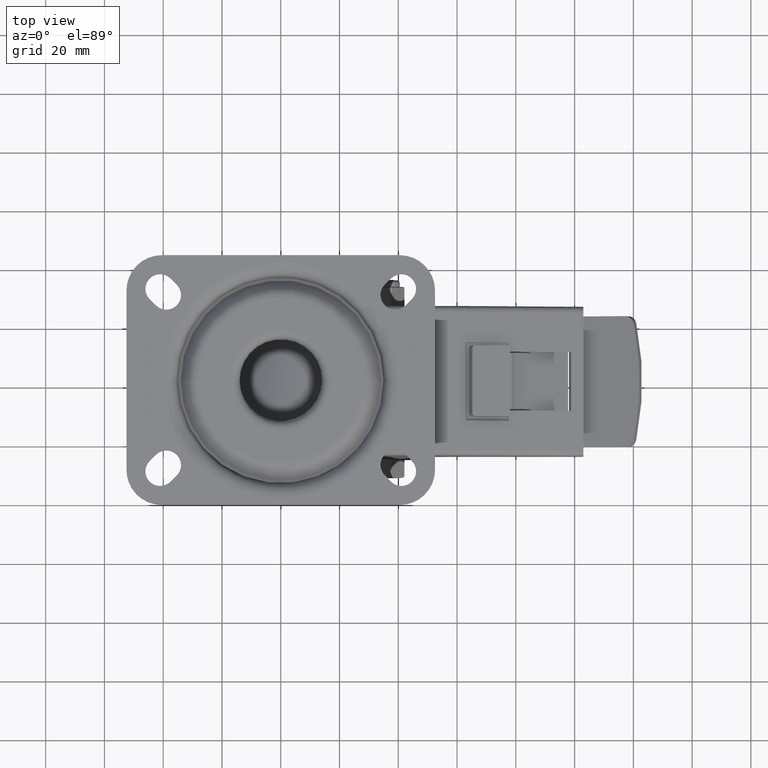
[diagram: clean part render]
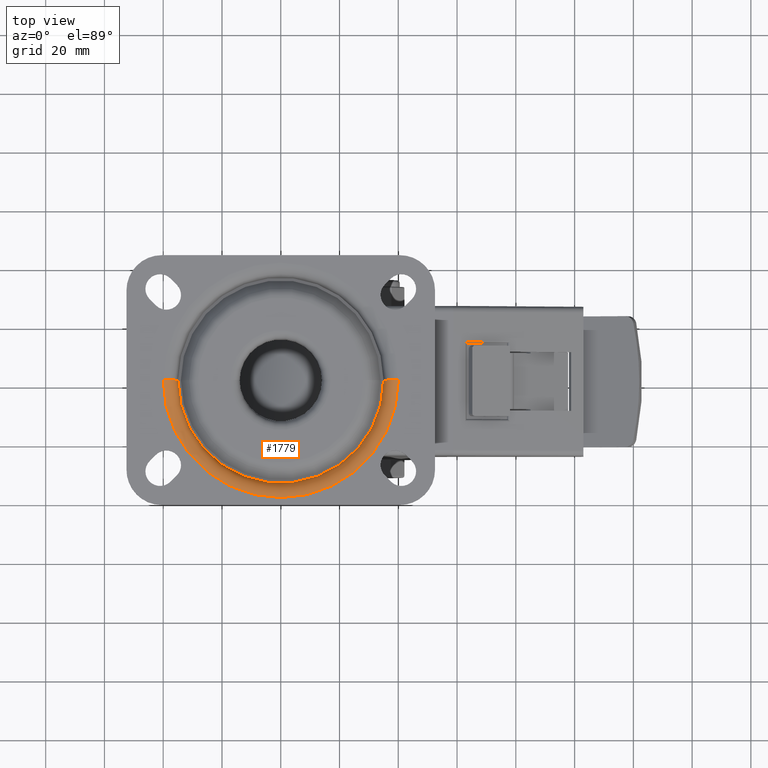
[diagram: same view with one face highlighted and labeled with its STEP entity id]
A machine part, top view. The second image highlights one B-rep face of the part: STEP entity #1779.
In plain terms, the highlighted toroidal blend (fillet) surface has major radius 40 mm and minor (blend) radius 5 mm.
Its self-contained STEP definition (entity closure, byte-faithful):
#1779=ADVANCED_FACE('77:25693',(#3422),#3423,.T.);
#3422=FACE_OUTER_BOUND('',#6004,.T.);
#3423=TOROIDAL_SURFACE('',#6005,0.04,0.005);
#6004=EDGE_LOOP('',(#15702,#15703,#15704,#15705));
#6005=AXIS2_PLACEMENT_3D('',#15706,#15707,#15708);
#15702=ORIENTED_EDGE('',*,*,#25019,.T.);
#15703=ORIENTED_EDGE('',*,*,#25570,.T.);
#15704=ORIENTED_EDGE('',*,*,#25021,.T.);
#15705=ORIENTED_EDGE('',*,*,#25571,.T.);
#15706=CARTESIAN_POINT('',(1.63670789225912E-19,0.0,-0.0025));
#15707=DIRECTION('',(-0.0,0.0,-1.0));
#15708=DIRECTION('',(-1.0,0.0,0.0));
#25019=EDGE_CURVE('',#28312,#28313,#28314,.T.);
#25021=EDGE_CURVE('',#28317,#28315,#28318,.T.);
#25570=EDGE_CURVE('77:27043',#28313,#28317,#29227,.T.);
#25571=EDGE_CURVE('77:27040',#28315,#28312,#29228,.T.);
#28312=VERTEX_POINT('',#33651);
#28313=VERTEX_POINT('',#33652);
#28314=CIRCLE('',#33653,0.005);
#28315=VERTEX_POINT('',#33654);
#28317=VERTEX_POINT('',#33656);
#28318=CIRCLE('',#33657,0.005);
#29227=CIRCLE('',#34944,0.04);
#29228=CIRCLE('',#34945,0.035);
#33651=CARTESIAN_POINT('',(-0.035,0.0,-0.00249999999999993));
#33652=CARTESIAN_POINT('',(-0.04,-9.79717439317882E-18,0.0025));
#33653=AXIS2_PLACEMENT_3D('',#45431,#45432,#45433);
#33654=CARTESIAN_POINT('',(0.035,4.28626379701574E-18,-0.00249999999999993));
#33656=CARTESIAN_POINT('',(0.04,4.89858719658941E-18,0.0025));
#33657=AXIS2_PLACEMENT_3D('',#45437,#45438,#45439);
#34944=AXIS2_PLACEMENT_3D('',#46328,#46329,#46330);
#34945=AXIS2_PLACEMENT_3D('',#46331,#46332,#46333);
#45431=CARTESIAN_POINT('',(-0.04,-4.89858719658941E-18,-0.0025));
#45432=DIRECTION('',(1.22464679914735E-16,-1.0,-0.0));
#45433=DIRECTION('',(-1.0,-1.22464679914735E-16,0.0));
#45437=CARTESIAN_POINT('',(0.04,4.89858719658941E-18,-0.0025));
#45438=DIRECTION('',(1.22464679914735E-16,-1.0,-0.0));
#45439=DIRECTION('',(1.0,1.22464679914735E-16,0.0));
#46328=CARTESIAN_POINT('',(1.63670789225912E-19,0.0,0.0025));
#46329=DIRECTION('',(0.0,-0.0,1.0));
#46330=DIRECTION('',(1.0,1.22464679914735E-16,0.0));
#46331=CARTESIAN_POINT('',(1.63670789225907E-19,0.0,-0.00249999999999993));
#46332=DIRECTION('',(6.53866449118381E-17,0.0,-1.0));
#46333=DIRECTION('',(-1.0,0.0,-6.53866449118381E-17));